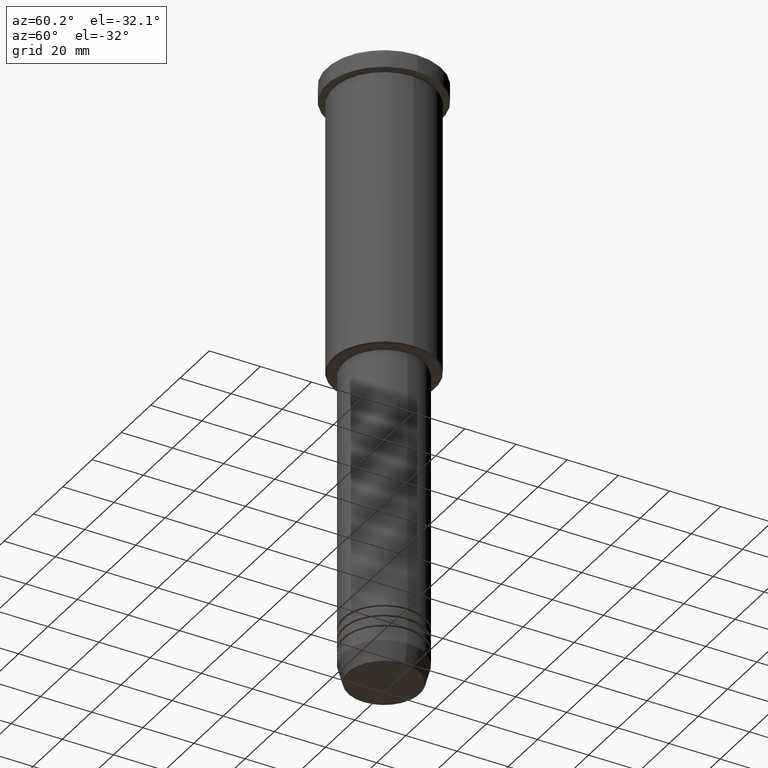
[diagram: clean part render]
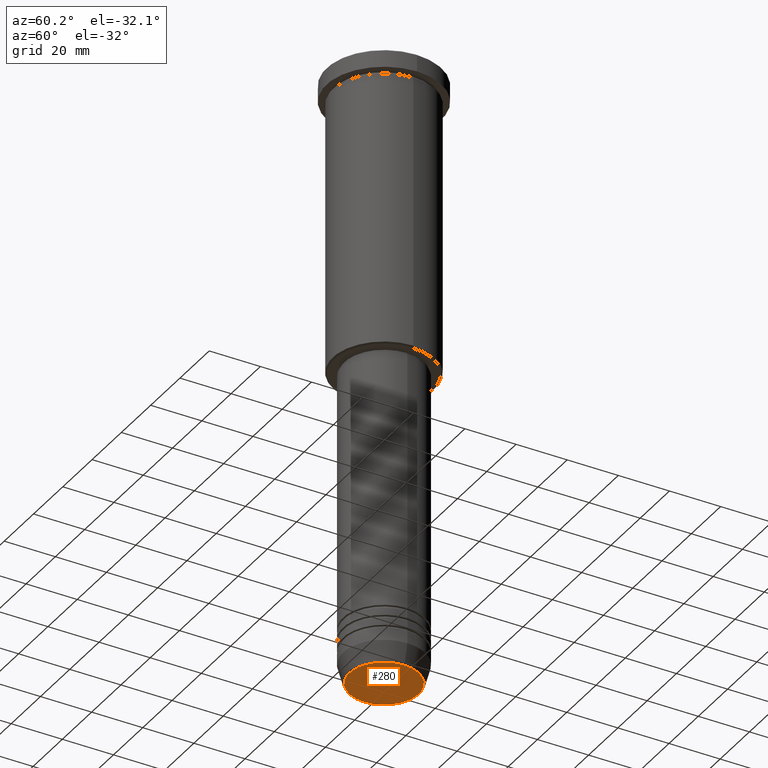
[diagram: same view with one face highlighted and labeled with its STEP entity id]
A machine part, auxiliary view. The second image highlights one B-rep face of the part: STEP entity #280.
In plain terms, the highlighted planar face has unit normal (0, -0, 1).
Its self-contained STEP definition (entity closure, byte-faithful):
#119 = CARTESIAN_POINT ( 'NONE',  ( 0.000000000000000000, 0.000000000000000000, -240.0000000000000000 ) ) ;
#155 = CARTESIAN_POINT ( 'NONE',  ( 13.60671756277710109, 0.000000000000000000, -240.0000000000000000 ) ) ;
#195 = DIRECTION ( 'NONE',  ( 0.000000000000000000, 0.000000000000000000, -1.000000000000000000 ) ) ;
#201 = DIRECTION ( 'NONE',  ( 0.000000000000000000, -0.000000000000000000, 1.000000000000000000 ) ) ;
#231 = CARTESIAN_POINT ( 'NONE',  ( 0.000000000000000000, 0.000000000000000000, -240.0000000000000000 ) ) ;
#280 = ADVANCED_FACE ( 'NONE', ( #391 ), #857, .F. ) ;
#322 = CARTESIAN_POINT ( 'NONE',  ( -13.60671756277710109, 1.695915260300172047E-15, -240.0000000000000000 ) ) ;
#323 = EDGE_LOOP ( 'NONE', ( #1004, #421 ) ) ;
#325 = AXIS2_PLACEMENT_3D ( 'NONE', #913, #195, #926 ) ;
#391 = FACE_OUTER_BOUND ( 'NONE', #323, .T. ) ;
#392 = VERTEX_POINT ( 'NONE', #155 ) ;
#421 = ORIENTED_EDGE ( 'NONE', *, *, #1000, .T. ) ;
#519 = CIRCLE ( 'NONE', #1159, 13.60671756277710109 ) ;
#749 = DIRECTION ( 'NONE',  ( 1.000000000000000000, 0.000000000000000000, 0.000000000000000000 ) ) ;
#770 = EDGE_CURVE ( 'NONE', #392, #923, #810, .T. ) ;
#810 = CIRCLE ( 'NONE', #325, 13.60671756277710109 ) ;
#857 = PLANE ( 'NONE',  #1038 ) ;
#913 = CARTESIAN_POINT ( 'NONE',  ( 0.000000000000000000, 0.000000000000000000, -240.0000000000000000 ) ) ;
#923 = VERTEX_POINT ( 'NONE', #322 ) ;
#926 = DIRECTION ( 'NONE',  ( 1.000000000000000000, 0.000000000000000000, 0.000000000000000000 ) ) ;
#936 = DIRECTION ( 'NONE',  ( 1.000000000000000000, 0.000000000000000000, 0.000000000000000000 ) ) ;
#1000 = EDGE_CURVE ( 'NONE', #923, #392, #519, .T. ) ;
#1004 = ORIENTED_EDGE ( 'NONE', *, *, #770, .T. ) ;
#1038 = AXIS2_PLACEMENT_3D ( 'NONE', #119, #201, #749 ) ;
#1137 = DIRECTION ( 'NONE',  ( 0.000000000000000000, 0.000000000000000000, -1.000000000000000000 ) ) ;
#1159 = AXIS2_PLACEMENT_3D ( 'NONE', #231, #1137, #936 ) ;